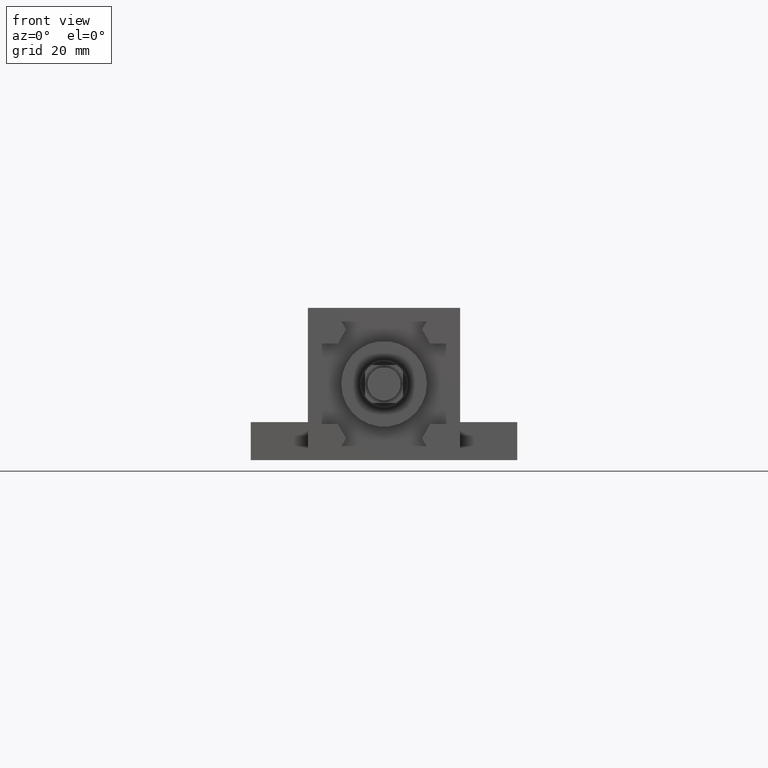
[diagram: clean part render]
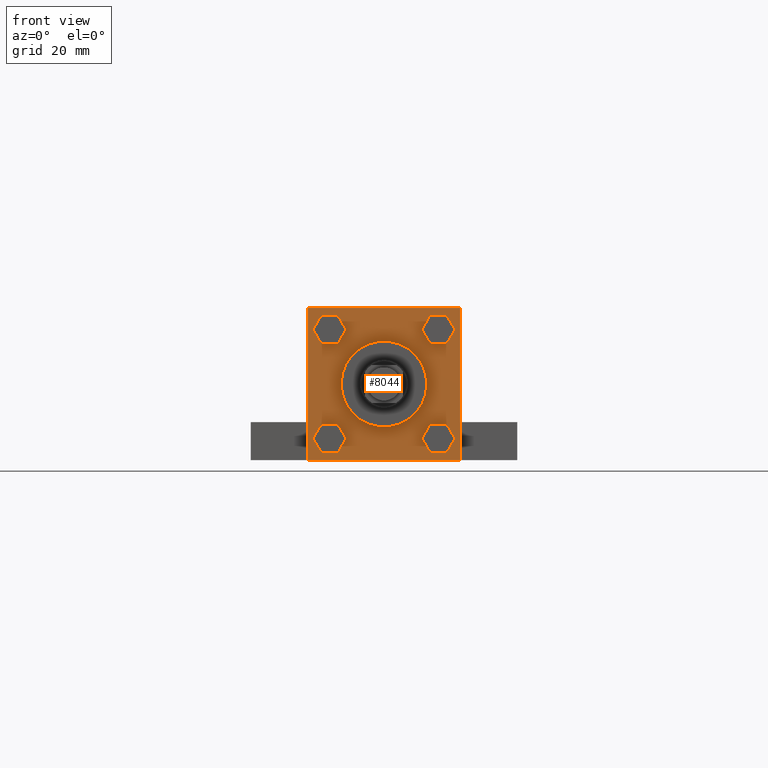
[diagram: same view with one face highlighted and labeled with its STEP entity id]
A machine part, front view. The second image highlights one B-rep face of the part: STEP entity #8044.
In plain terms, the highlighted planar face has unit normal (0, -1, 0).
Its self-contained STEP definition (entity closure, byte-faithful):
#424=EDGE_CURVE('',#430,#430,#425,.T.);
#425=CIRCLE('',#426,1.428750000E+001);
#426=AXIS2_PLACEMENT_3D('',#427,#428,#429);
#427=CARTESIAN_POINT('',(0.000000000E+000,1.587500000E+001,0.000000000E+000));
#428=DIRECTION('',(0.0E+000,1.0E+000,0.0E+000));
#429=DIRECTION('',(1.0E+000,0.0E+000,0.0E+000));
#430=VERTEX_POINT('',#431);
#431=CARTESIAN_POINT('',(1.428750000E+001,1.587500000E+001,0.000000000E+000));
#1317=VERTEX_POINT('',#1318);
#1318=CARTESIAN_POINT('',(2.091063417E+001,1.587500000E+001,1.339850365E+001));
#1319=EDGE_CURVE('',#1317,#1324,#1320,.T.);
#1320=LINE('',#1321,#1322);
#1321=CARTESIAN_POINT('',(2.091063417E+001,1.587500000E+001,1.339850365E+001));
#1322=VECTOR('',#1323,1.0E+000);
#1323=DIRECTION('',(5.0E-001,0.0E+000,8.66025403784439E-001));
#1324=VERTEX_POINT('',#1325);
#1325=CARTESIAN_POINT('',(2.366025991E+001,1.587500000E+001,1.816100000E+001));
#1347=VERTEX_POINT('',#1348);
#1348=CARTESIAN_POINT('',(1.541136583E+001,1.587500000E+001,1.339850365E+001));
#1349=EDGE_CURVE('',#1347,#1317,#1350,.T.);
#1350=LINE('',#1351,#1352);
#1351=CARTESIAN_POINT('',(1.541136583E+001,1.587500000E+001,1.339850365E+001));
#1352=VECTOR('',#1353,1.0E+000);
#1353=DIRECTION('',(1.0E+000,0.0E+000,0.0E+000));
#1370=VERTEX_POINT('',#1371);
#1371=CARTESIAN_POINT('',(1.266174009E+001,1.587500000E+001,1.816100000E+001));
#1372=EDGE_CURVE('',#1370,#1347,#1373,.T.);
#1373=LINE('',#1374,#1375);
#1374=CARTESIAN_POINT('',(1.266174009E+001,1.587500000E+001,1.816100000E+001));
#1375=VECTOR('',#1376,1.0E+000);
#1376=DIRECTION('',(5.0E-001,0.0E+000,-8.66025403784439E-001));
#1393=VERTEX_POINT('',#1394);
#1394=CARTESIAN_POINT('',(1.541136583E+001,1.587500000E+001,2.292349635E+001));
#1395=EDGE_CURVE('',#1393,#1370,#1396,.T.);
#1396=LINE('',#1397,#1398);
#1397=CARTESIAN_POINT('',(1.541136583E+001,1.587500000E+001,2.292349635E+001));
#1398=VECTOR('',#1399,1.0E+000);
#1399=DIRECTION('',(-5.0E-001,0.0E+000,-8.66025403784439E-001));
#1416=VERTEX_POINT('',#1417);
#1417=CARTESIAN_POINT('',(2.091063417E+001,1.587500000E+001,2.292349635E+001));
#1418=EDGE_CURVE('',#1416,#1393,#1419,.T.);
#1419=LINE('',#1420,#1421);
#1420=CARTESIAN_POINT('',(2.091063417E+001,1.587500000E+001,2.292349635E+001));
#1421=VECTOR('',#1422,1.0E+000);
#1422=DIRECTION('',(-1.0E+000,0.0E+000,0.0E+000));
#1434=EDGE_CURVE('',#1324,#1416,#1435,.T.);
#1435=LINE('',#1436,#1437);
#1436=CARTESIAN_POINT('',(2.366025991E+001,1.587500000E+001,1.816100000E+001));
#1437=VECTOR('',#1438,1.0E+000);
#1438=DIRECTION('',(-5.0E-001,0.0E+000,8.66025403784439E-001));
#1510=VERTEX_POINT('',#1511);
#1511=CARTESIAN_POINT('',(-1.541136583E+001,1.587500000E+001,1.339850365E+001));
#1512=EDGE_CURVE('',#1510,#1517,#1513,.T.);
#1513=LINE('',#1514,#1515);
#1514=CARTESIAN_POINT('',(-1.541136583E+001,1.587500000E+001,1.339850365E+001));
#1515=VECTOR('',#1516,1.0E+000);
#1516=DIRECTION('',(5.0E-001,0.0E+000,8.66025403784439E-001));
#1517=VERTEX_POINT('',#1518);
#1518=CARTESIAN_POINT('',(-1.266174009E+001,1.587500000E+001,1.816100000E+001));
#1540=VERTEX_POINT('',#1541);
#1541=CARTESIAN_POINT('',(-2.091063417E+001,1.587500000E+001,1.339850365E+001));
#1542=EDGE_CURVE('',#1540,#1510,#1543,.T.);
#1543=LINE('',#1544,#1545);
#1544=CARTESIAN_POINT('',(-2.091063417E+001,1.587500000E+001,1.339850365E+001));
#1545=VECTOR('',#1546,1.0E+000);
#1546=DIRECTION('',(1.0E+000,0.0E+000,0.0E+000));
#1563=VERTEX_POINT('',#1564);
#1564=CARTESIAN_POINT('',(-2.366025991E+001,1.587500000E+001,1.816100000E+001));
#1565=EDGE_CURVE('',#1563,#1540,#1566,.T.);
#1566=LINE('',#1567,#1568);
#1567=CARTESIAN_POINT('',(-2.366025991E+001,1.587500000E+001,1.816100000E+001));
#1568=VECTOR('',#1569,1.0E+000);
#1569=DIRECTION('',(5.0E-001,0.0E+000,-8.66025403784439E-001));
#1586=VERTEX_POINT('',#1587);
#1587=CARTESIAN_POINT('',(-2.091063417E+001,1.587500000E+001,2.292349635E+001));
#1588=EDGE_CURVE('',#1586,#1563,#1589,.T.);
#1589=LINE('',#1590,#1591);
#1590=CARTESIAN_POINT('',(-2.091063417E+001,1.587500000E+001,2.292349635E+001));
#1591=VECTOR('',#1592,1.0E+000);
#1592=DIRECTION('',(-5.0E-001,0.0E+000,-8.66025403784439E-001));
#1609=VERTEX_POINT('',#1610);
#1610=CARTESIAN_POINT('',(-1.541136583E+001,1.587500000E+001,2.292349635E+001));
#1611=EDGE_CURVE('',#1609,#1586,#1612,.T.);
#1612=LINE('',#1613,#1614);
#1613=CARTESIAN_POINT('',(-1.541136583E+001,1.587500000E+001,2.292349635E+001));
#1614=VECTOR('',#1615,1.0E+000);
#1615=DIRECTION('',(-1.0E+000,0.0E+000,0.0E+000));
#1627=EDGE_CURVE('',#1517,#1609,#1628,.T.);
#1628=LINE('',#1629,#1630);
#1629=CARTESIAN_POINT('',(-1.266174009E+001,1.587500000E+001,1.816100000E+001));
#1630=VECTOR('',#1631,1.0E+000);
#1631=DIRECTION('',(-5.0E-001,0.0E+000,8.66025403784439E-001));
#1703=VERTEX_POINT('',#1704);
#1704=CARTESIAN_POINT('',(-1.541136583E+001,1.587500000E+001,-2.292349635E+001));
#1705=EDGE_CURVE('',#1703,#1710,#1706,.T.);
#1706=LINE('',#1707,#1708);
#1707=CARTESIAN_POINT('',(-1.541136583E+001,1.587500000E+001,-2.292349635E+001));
#1708=VECTOR('',#1709,1.0E+000);
#1709=DIRECTION('',(5.0E-001,0.0E+000,8.66025403784439E-001));
#1710=VERTEX_POINT('',#1711);
#1711=CARTESIAN_POINT('',(-1.266174009E+001,1.587500000E+001,-1.816100000E+001));
#1733=VERTEX_POINT('',#1734);
#1734=CARTESIAN_POINT('',(-2.091063417E+001,1.587500000E+001,-2.292349635E+001));
#1735=EDGE_CURVE('',#1733,#1703,#1736,.T.);
#1736=LINE('',#1737,#1738);
#1737=CARTESIAN_POINT('',(-2.091063417E+001,1.587500000E+001,-2.292349635E+001));
#1738=VECTOR('',#1739,1.0E+000);
#1739=DIRECTION('',(1.0E+000,0.0E+000,0.0E+000));
#1756=VERTEX_POINT('',#1757);
#1757=CARTESIAN_POINT('',(-2.366025991E+001,1.587500000E+001,-1.816100000E+001));
#1758=EDGE_CURVE('',#1756,#1733,#1759,.T.);
#1759=LINE('',#1760,#1761);
#1760=CARTESIAN_POINT('',(-2.366025991E+001,1.587500000E+001,-1.816100000E+001));
#1761=VECTOR('',#1762,1.0E+000);
#1762=DIRECTION('',(5.0E-001,0.0E+000,-8.66025403784439E-001));
#1779=VERTEX_POINT('',#1780);
#1780=CARTESIAN_POINT('',(-2.091063417E+001,1.587500000E+001,-1.339850365E+001));
#1781=EDGE_CURVE('',#1779,#1756,#1782,.T.);
#1782=LINE('',#1783,#1784);
#1783=CARTESIAN_POINT('',(-2.091063417E+001,1.587500000E+001,-1.339850365E+001));
#1784=VECTOR('',#1785,1.0E+000);
#1785=DIRECTION('',(-5.0E-001,0.0E+000,-8.66025403784439E-001));
#1802=VERTEX_POINT('',#1803);
#1803=CARTESIAN_POINT('',(-1.541136583E+001,1.587500000E+001,-1.339850365E+001));
#1804=EDGE_CURVE('',#1802,#1779,#1805,.T.);
#1805=LINE('',#1806,#1807);
#1806=CARTESIAN_POINT('',(-1.541136583E+001,1.587500000E+001,-1.339850365E+001));
#1807=VECTOR('',#1808,1.0E+000);
#1808=DIRECTION('',(-1.0E+000,0.0E+000,0.0E+000));
#1820=EDGE_CURVE('',#1710,#1802,#1821,.T.);
#1821=LINE('',#1822,#1823);
#1822=CARTESIAN_POINT('',(-1.266174009E+001,1.587500000E+001,-1.816100000E+001));
#1823=VECTOR('',#1824,1.0E+000);
#1824=DIRECTION('',(-5.0E-001,0.0E+000,8.66025403784439E-001));
#1896=VERTEX_POINT('',#1897);
#1897=CARTESIAN_POINT('',(1.541136583E+001,1.587500000E+001,-1.339850365E+001));
#1898=EDGE_CURVE('',#1896,#1903,#1899,.T.);
#1899=LINE('',#1900,#1901);
#1900=CARTESIAN_POINT('',(1.541136583E+001,1.587500000E+001,-1.339850365E+001));
#1901=VECTOR('',#1902,1.0E+000);
#1902=DIRECTION('',(-5.0E-001,0.0E+000,-8.66025403784439E-001));
#1903=VERTEX_POINT('',#1904);
#1904=CARTESIAN_POINT('',(1.266174009E+001,1.587500000E+001,-1.816100000E+001));
#1926=VERTEX_POINT('',#1927);
#1927=CARTESIAN_POINT('',(2.091063417E+001,1.587500000E+001,-1.339850365E+001));
#1928=EDGE_CURVE('',#1926,#1896,#1929,.T.);
#1929=LINE('',#1930,#1931);
#1930=CARTESIAN_POINT('',(2.091063417E+001,1.587500000E+001,-1.339850365E+001));
#1931=VECTOR('',#1932,1.0E+000);
#1932=DIRECTION('',(-1.0E+000,0.0E+000,0.0E+000));
#1949=VERTEX_POINT('',#1950);
#1950=CARTESIAN_POINT('',(2.366025991E+001,1.587500000E+001,-1.816100000E+001));
#1951=EDGE_CURVE('',#1949,#1926,#1952,.T.);
#1952=LINE('',#1953,#1954);
#1953=CARTESIAN_POINT('',(2.366025991E+001,1.587500000E+001,-1.816100000E+001));
#1954=VECTOR('',#1955,1.0E+000);
#1955=DIRECTION('',(-5.0E-001,0.0E+000,8.66025403784439E-001));
#1972=VERTEX_POINT('',#1973);
#1973=CARTESIAN_POINT('',(2.091063417E+001,1.587500000E+001,-2.292349635E+001));
#1974=EDGE_CURVE('',#1972,#1949,#1975,.T.);
#1975=LINE('',#1976,#1977);
#1976=CARTESIAN_POINT('',(2.091063417E+001,1.587500000E+001,-2.292349635E+001));
#1977=VECTOR('',#1978,1.0E+000);
#1978=DIRECTION('',(5.0E-001,0.0E+000,8.66025403784439E-001));
#1995=VERTEX_POINT('',#1996);
#1996=CARTESIAN_POINT('',(1.541136583E+001,1.587500000E+001,-2.292349635E+001));
#1997=EDGE_CURVE('',#1995,#1972,#1998,.T.);
#1998=LINE('',#1999,#2000);
#1999=CARTESIAN_POINT('',(1.541136583E+001,1.587500000E+001,-2.292349635E+001));
#2000=VECTOR('',#2001,1.0E+000);
#2001=DIRECTION('',(1.0E+000,0.0E+000,0.0E+000));
#2013=EDGE_CURVE('',#1903,#1995,#2014,.T.);
#2014=LINE('',#2015,#2016);
#2015=CARTESIAN_POINT('',(1.266174009E+001,1.587500000E+001,-1.816100000E+001));
#2016=VECTOR('',#2017,1.0E+000);
#2017=DIRECTION('',(5.0E-001,0.0E+000,-8.66025403784439E-001));
#2547=VERTEX_POINT('',#2548);
#2548=CARTESIAN_POINT('',(-2.540000000E+001,1.587500000E+001,-2.540000000E+001));
#2549=EDGE_CURVE('',#2554,#2547,#2550,.T.);
#2550=LINE('',#2551,#2552);
#2551=CARTESIAN_POINT('',(-2.540000000E+001,1.587500000E+001,2.540000000E+001));
#2552=VECTOR('',#2553,1.0E+000);
#2553=DIRECTION('',(0.0E+000,0.0E+000,-1.0E+000));
#2554=VERTEX_POINT('',#2555);
#2555=CARTESIAN_POINT('',(-2.540000000E+001,1.587500000E+001,2.540000000E+001));
#2585=EDGE_CURVE('',#2590,#2554,#2586,.T.);
#2586=LINE('',#2587,#2588);
#2587=CARTESIAN_POINT('',(2.540000000E+001,1.587500000E+001,2.540000000E+001));
#2588=VECTOR('',#2589,1.0E+000);
#2589=DIRECTION('',(-1.0E+000,0.0E+000,0.0E+000));
#2590=VERTEX_POINT('',#2591);
#2591=CARTESIAN_POINT('',(2.540000000E+001,1.587500000E+001,2.540000000E+001));
#2634=EDGE_CURVE('',#2639,#2590,#2635,.T.);
#2635=LINE('',#2636,#2637);
#2636=CARTESIAN_POINT('',(2.540000000E+001,1.587500000E+001,-2.540000000E+001));
#2637=VECTOR('',#2638,1.0E+000);
#2638=DIRECTION('',(0.0E+000,0.0E+000,1.0E+000));
#2639=VERTEX_POINT('',#2640);
#2640=CARTESIAN_POINT('',(2.540000000E+001,1.587500000E+001,-2.540000000E+001));
#2670=EDGE_CURVE('',#2547,#2639,#2671,.T.);
#2671=LINE('',#2672,#2673);
#2672=CARTESIAN_POINT('',(-2.540000000E+001,1.587500000E+001,-2.540000000E+001));
#2673=VECTOR('',#2674,1.0E+000);
#2674=DIRECTION('',(1.0E+000,0.0E+000,0.0E+000));
#2711=FACE_OUTER_BOUND('',#2717,.T.);
#2712=FACE_BOUND('',#2718,.T.);
#2713=FACE_BOUND('',#2719,.T.);
#2714=FACE_BOUND('',#2720,.T.);
#2715=FACE_BOUND('',#2721,.T.);
#2716=FACE_BOUND('',#2722,.T.);
#2717=EDGE_LOOP('',(#2723,#2724,#2725,#2726));
#2718=EDGE_LOOP('',(#2727,#2728,#2729,#2730,#2731,#2732));
#2719=EDGE_LOOP('',(#2733,#2734,#2735,#2736,#2737,#2738));
#2720=EDGE_LOOP('',(#2739,#2740,#2741,#2742,#2743,#2744));
#2721=EDGE_LOOP('',(#2745,#2746,#2747,#2748,#2749,#2750));
#2722=EDGE_LOOP('',(#2751));
#2723=ORIENTED_EDGE('',*,*,#2670,.T.);
#2724=ORIENTED_EDGE('',*,*,#2634,.T.);
#2725=ORIENTED_EDGE('',*,*,#2585,.T.);
#2726=ORIENTED_EDGE('',*,*,#2549,.T.);
#2727=ORIENTED_EDGE('',*,*,#2013,.F.);
#2728=ORIENTED_EDGE('',*,*,#1898,.F.);
#2729=ORIENTED_EDGE('',*,*,#1928,.F.);
#2730=ORIENTED_EDGE('',*,*,#1951,.F.);
#2731=ORIENTED_EDGE('',*,*,#1974,.F.);
#2732=ORIENTED_EDGE('',*,*,#1997,.F.);
#2733=ORIENTED_EDGE('',*,*,#1820,.F.);
#2734=ORIENTED_EDGE('',*,*,#1705,.F.);
#2735=ORIENTED_EDGE('',*,*,#1735,.F.);
#2736=ORIENTED_EDGE('',*,*,#1758,.F.);
#2737=ORIENTED_EDGE('',*,*,#1781,.F.);
#2738=ORIENTED_EDGE('',*,*,#1804,.F.);
#2739=ORIENTED_EDGE('',*,*,#1627,.F.);
#2740=ORIENTED_EDGE('',*,*,#1512,.F.);
#2741=ORIENTED_EDGE('',*,*,#1542,.F.);
#2742=ORIENTED_EDGE('',*,*,#1565,.F.);
#2743=ORIENTED_EDGE('',*,*,#1588,.F.);
#2744=ORIENTED_EDGE('',*,*,#1611,.F.);
#2745=ORIENTED_EDGE('',*,*,#1434,.F.);
#2746=ORIENTED_EDGE('',*,*,#1319,.F.);
#2747=ORIENTED_EDGE('',*,*,#1349,.F.);
#2748=ORIENTED_EDGE('',*,*,#1372,.F.);
#2749=ORIENTED_EDGE('',*,*,#1395,.F.);
#2750=ORIENTED_EDGE('',*,*,#1418,.F.);
#2751=ORIENTED_EDGE('',*,*,#424,.T.);
#2760=PLANE('',#2761);
#2761=AXIS2_PLACEMENT_3D('',#2762,#2763,#2764);
#2762=CARTESIAN_POINT('',(2.540000000E+001,1.587500000E+001,-2.540000000E+001));
#2763=DIRECTION('',(0.0E+000,-1.0E+000,0.0E+000));
#2764=DIRECTION('',(0.0E+000,0.0E+000,-1.0E+000));
#8044=ADVANCED_FACE('',(#2711,#2712,#2713,#2714,#2715,#2716),#2760,.T.);